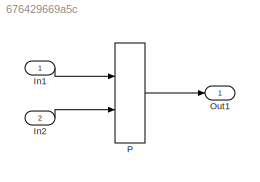
MODEL slx_676429669a5c
KIND model
CONFIG AbsTol = auto
CONFIG EnableMultiTasking = off
CONFIG FixedStep = auto
CONFIG MaxStep = auto
CONFIG MinStep = auto
CONFIG RelTol = 1e-3
CONFIG SampleTimeConstraint = Unconstrained
CONFIG Solver = FixedStepDiscrete
CONFIG SolverName = FixedStepDiscrete
CONFIG StartTime = 0.0
CONFIG StopTime = 10.0
BLOCK [Inport] In1
  IconDisplay = Port number
  OutMax = 3
  OutMin = 0
BLOCK [Inport] In2
  IconDisplay = Port number
  Port = 2
  PortDimensions = 3
BLOCK [Outport] Out1
  IconDisplay = Port number
BLOCK [Interpolation_n-D] P
  ExtrapMethod = Clip
  InputPortMap = u0,p2
  IntermediateResultsDataTypeStr = int8
  InternalRulePriority = Speed
  NumSelectionDims = 1
  NumberOfTableDimensions = 1
  OutDataTypeStr = Inherit: Inherit via back propagation
  Ports = [2, 1]
  RndMeth = Nearest
  TableSource = Input port
LINE In1:1 -> P:1
LINE In2:1 -> P:2
LINE P:1 -> Out1:1
